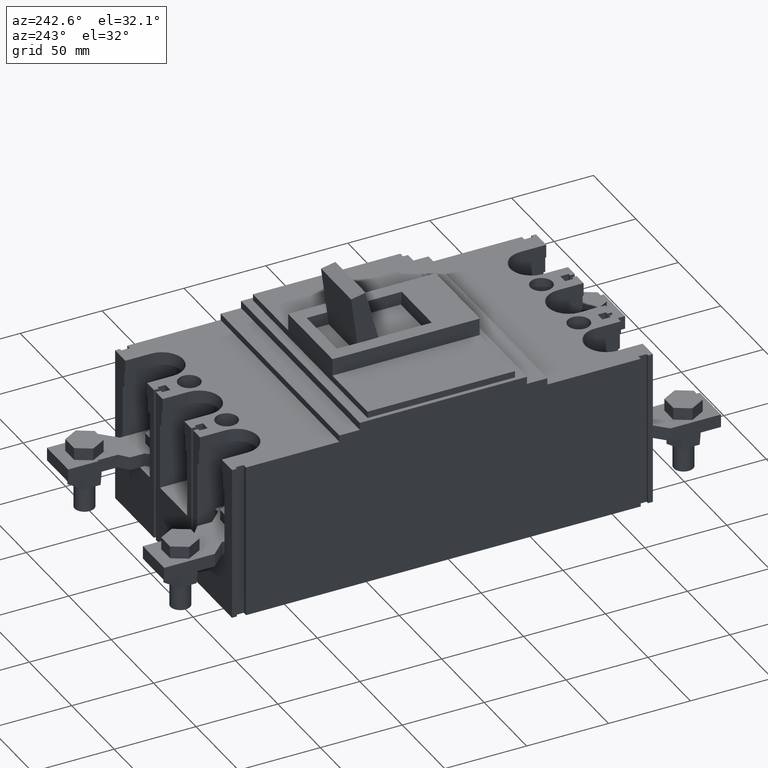
[diagram: clean part render]
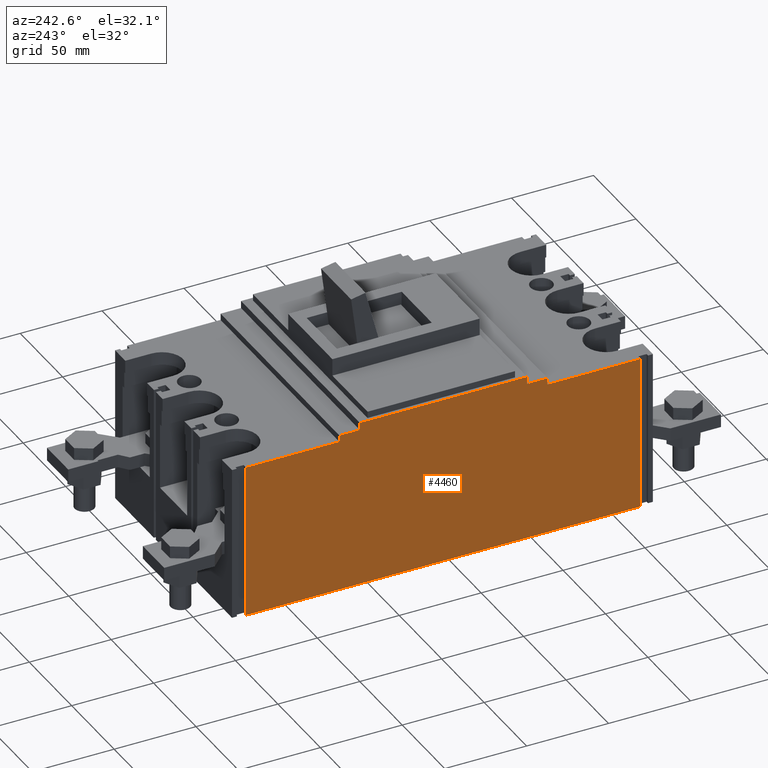
[diagram: same view with one face highlighted and labeled with its STEP entity id]
A machine part, auxiliary view. The second image highlights one B-rep face of the part: STEP entity #4460.
In plain terms, the highlighted planar face has unit normal (1, -0, 0).
Its self-contained STEP definition (entity closure, byte-faithful):
#407 = VERTEX_POINT ( 'NONE', #2709 ) ;
#640 = EDGE_CURVE ( 'NONE', #407, #2222, #14246, .T. ) ;
#1147 = DIRECTION ( 'NONE',  ( -0.0000000000000000000, -1.000000000000000000, -0.0000000000000000000 ) ) ;
#1589 = CARTESIAN_POINT ( 'NONE',  ( -2.755905511811024056, 6.240157480314961091, 0.0000000000000000000 ) ) ;
#1744 = LINE ( 'NONE', #2797, #13025 ) ;
#1826 = ORIENTED_EDGE ( 'NONE', *, *, #16772, .T. ) ;
#2128 = EDGE_CURVE ( 'NONE', #2954, #13733, #11904, .T. ) ;
#2222 = VERTEX_POINT ( 'NONE', #17649 ) ;
#2314 = CARTESIAN_POINT ( 'NONE',  ( -2.755905511811024056, -0.5118110236220473341, 0.0000000000000000000 ) ) ;
#2378 = LINE ( 'NONE', #4693, #18237 ) ;
#2709 = CARTESIAN_POINT ( 'NONE',  ( -2.755905511811024056, 1.732283464566929165, 3.720472440944881942 ) ) ;
#2797 = CARTESIAN_POINT ( 'NONE',  ( -2.755905511811024056, 0.0000000000000000000, 4.055118110236221263 ) ) ;
#2802 = VECTOR ( 'NONE', #16555, 39.37007874015748143 ) ;
#2851 = LINE ( 'NONE', #1589, #11895 ) ;
#2954 = VERTEX_POINT ( 'NONE', #11237 ) ;
#3195 = ORIENTED_EDGE ( 'NONE', *, *, #4880, .F. ) ;
#3298 = DIRECTION ( 'NONE',  ( 0.0000000000000000000, 1.000000000000000000, 0.0000000000000000000 ) ) ;
#3670 = DIRECTION ( 'NONE',  ( 0.0000000000000000000, 0.0000000000000000000, -1.000000000000000000 ) ) ;
#3849 = ORIENTED_EDGE ( 'NONE', *, *, #4855, .F. ) ;
#4022 = CARTESIAN_POINT ( 'NONE',  ( -2.755905511811024056, 0.0000000000000000000, 3.877952755905512028 ) ) ;
#4161 = VECTOR ( 'NONE', #7249, 39.37007874015748143 ) ;
#4460 = ADVANCED_FACE ( 'NONE', ( #9244 ), #13392, .F. ) ;
#4542 = DIRECTION ( 'NONE',  ( 0.0000000000000000000, 0.0000000000000000000, -1.000000000000000000 ) ) ;
#4693 = CARTESIAN_POINT ( 'NONE',  ( -2.755905511811024056, 2.224409448818897683, 0.0000000000000000000 ) ) ;
#4855 = EDGE_CURVE ( 'NONE', #16441, #10743, #1744, .T. ) ;
#4880 = EDGE_CURVE ( 'NONE', #12579, #11005, #17108, .T. ) ;
#4959 = EDGE_CURVE ( 'NONE', #17224, #16441, #2851, .T. ) ;
#5370 = LINE ( 'NONE', #16833, #12147 ) ;
#5467 = CARTESIAN_POINT ( 'NONE',  ( -2.755905511811024056, 6.732283464566929609, 3.877952755905512028 ) ) ;
#5679 = CARTESIAN_POINT ( 'NONE',  ( -2.755905511811024056, 0.0000000000000000000, 3.877952755905512028 ) ) ;
#5997 = ORIENTED_EDGE ( 'NONE', *, *, #640, .F. ) ;
#6189 = LINE ( 'NONE', #15757, #9115 ) ;
#6286 = ORIENTED_EDGE ( 'NONE', *, *, #12306, .F. ) ;
#6421 = CARTESIAN_POINT ( 'NONE',  ( -2.755905511811024056, 0.0000000000000000000, 3.720472440944881942 ) ) ;
#6658 = AXIS2_PLACEMENT_3D ( 'NONE', #17736, #10301, #4542 ) ;
#7248 = VERTEX_POINT ( 'NONE', #18546 ) ;
#7249 = DIRECTION ( 'NONE',  ( -0.0000000000000000000, -1.000000000000000000, -0.0000000000000000000 ) ) ;
#7279 = DIRECTION ( 'NONE',  ( -0.0000000000000000000, -0.0000000000000000000, 1.000000000000000000 ) ) ;
#7419 = ORIENTED_EDGE ( 'NONE', *, *, #2128, .F. ) ;
#7480 = VERTEX_POINT ( 'NONE', #17512 ) ;
#7521 = CARTESIAN_POINT ( 'NONE',  ( -2.755905511811024056, 6.732283464566929609, 3.720472440944881942 ) ) ;
#7669 = EDGE_CURVE ( 'NONE', #11005, #13249, #11358, .T. ) ;
#8600 = CARTESIAN_POINT ( 'NONE',  ( -2.755905511811024056, 0.0000000000000000000, 3.720472440944881942 ) ) ;
#8860 = CARTESIAN_POINT ( 'NONE',  ( -2.755905511811024056, 6.240157480314961091, 3.877952755905512028 ) ) ;
#9115 = VECTOR ( 'NONE', #9972, 39.37007874015748143 ) ;
#9129 = LINE ( 'NONE', #4022, #14326 ) ;
#9244 = FACE_OUTER_BOUND ( 'NONE', #10478, .T. ) ;
#9972 = DIRECTION ( 'NONE',  ( 0.0000000000000000000, 0.0000000000000000000, -1.000000000000000000 ) ) ;
#10301 = DIRECTION ( 'NONE',  ( 1.000000000000000000, -0.0000000000000000000, 0.0000000000000000000 ) ) ;
#10390 = VECTOR ( 'NONE', #13466, 39.37007874015748143 ) ;
#10478 = EDGE_LOOP ( 'NONE', ( #5997, #14508, #16806, #14935, #3849, #18366, #15539, #16465, #3195, #1826, #7419, #6286 ) ) ;
#10515 = VECTOR ( 'NONE', #11494, 39.37007874015748143 ) ;
#10743 = VERTEX_POINT ( 'NONE', #15420 ) ;
#11005 = VERTEX_POINT ( 'NONE', #7521 ) ;
#11237 = CARTESIAN_POINT ( 'NONE',  ( -2.755905511811024056, -0.5118110236220473341, 0.0000000000000000000 ) ) ;
#11358 = LINE ( 'NONE', #16498, #2802 ) ;
#11494 = DIRECTION ( 'NONE',  ( -0.0000000000000000000, -1.000000000000000000, -0.0000000000000000000 ) ) ;
#11895 = VECTOR ( 'NONE', #7279, 39.37007874015748143 ) ;
#11904 = LINE ( 'NONE', #14834, #17332 ) ;
#12147 = VECTOR ( 'NONE', #12330, 39.37007874015748143 ) ;
#12296 = EDGE_CURVE ( 'NONE', #10743, #7248, #2378, .T. ) ;
#12306 = EDGE_CURVE ( 'NONE', #2222, #2954, #17307, .T. ) ;
#12330 = DIRECTION ( 'NONE',  ( 0.0000000000000000000, -0.0000000000000000000, -1.000000000000000000 ) ) ;
#12579 = VERTEX_POINT ( 'NONE', #15336 ) ;
#12707 = EDGE_CURVE ( 'NONE', #7248, #7480, #16158, .T. ) ;
#13025 = VECTOR ( 'NONE', #18679, 39.37007874015748143 ) ;
#13221 = EDGE_CURVE ( 'NONE', #13249, #17224, #9129, .T. ) ;
#13249 = VERTEX_POINT ( 'NONE', #5467 ) ;
#13391 = EDGE_CURVE ( 'NONE', #7480, #407, #6189, .T. ) ;
#13392 = PLANE ( 'NONE',  #6658 ) ;
#13466 = DIRECTION ( 'NONE',  ( -0.0000000000000000000, -1.000000000000000000, -0.0000000000000000000 ) ) ;
#13733 = VERTEX_POINT ( 'NONE', #14262 ) ;
#13871 = VECTOR ( 'NONE', #3670, 39.37007874015748143 ) ;
#14246 = LINE ( 'NONE', #6421, #10390 ) ;
#14262 = CARTESIAN_POINT ( 'NONE',  ( -2.755905511811024056, 8.976377952755905554, 0.0000000000000000000 ) ) ;
#14326 = VECTOR ( 'NONE', #1147, 39.37007874015748143 ) ;
#14508 = ORIENTED_EDGE ( 'NONE', *, *, #13391, .F. ) ;
#14774 = DIRECTION ( 'NONE',  ( 0.0000000000000000000, 0.0000000000000000000, -1.000000000000000000 ) ) ;
#14834 = CARTESIAN_POINT ( 'NONE',  ( -2.755905511811024056, -0.8267716535433071723, 0.0000000000000000000 ) ) ;
#14935 = ORIENTED_EDGE ( 'NONE', *, *, #12296, .F. ) ;
#15336 = CARTESIAN_POINT ( 'NONE',  ( -2.755905511811024056, 8.976377952755905554, 3.720472440944881942 ) ) ;
#15420 = CARTESIAN_POINT ( 'NONE',  ( -2.755905511811024056, 2.224409448818897683, 4.055118110236221263 ) ) ;
#15539 = ORIENTED_EDGE ( 'NONE', *, *, #13221, .F. ) ;
#15757 = CARTESIAN_POINT ( 'NONE',  ( -2.755905511811024056, 1.732283464566929165, 0.0000000000000000000 ) ) ;
#16158 = LINE ( 'NONE', #5679, #4161 ) ;
#16441 = VERTEX_POINT ( 'NONE', #17296 ) ;
#16465 = ORIENTED_EDGE ( 'NONE', *, *, #7669, .F. ) ;
#16498 = CARTESIAN_POINT ( 'NONE',  ( -2.755905511811024056, 6.732283464566929609, 0.0000000000000000000 ) ) ;
#16555 = DIRECTION ( 'NONE',  ( -0.0000000000000000000, -0.0000000000000000000, 1.000000000000000000 ) ) ;
#16772 = EDGE_CURVE ( 'NONE', #12579, #13733, #5370, .T. ) ;
#16806 = ORIENTED_EDGE ( 'NONE', *, *, #12707, .F. ) ;
#16833 = CARTESIAN_POINT ( 'NONE',  ( -2.755905511811024056, 8.976377952755905554, 3.720472440944881942 ) ) ;
#17108 = LINE ( 'NONE', #8600, #10515 ) ;
#17224 = VERTEX_POINT ( 'NONE', #8860 ) ;
#17296 = CARTESIAN_POINT ( 'NONE',  ( -2.755905511811024056, 6.240157480314961091, 4.055118110236221263 ) ) ;
#17307 = LINE ( 'NONE', #2314, #13871 ) ;
#17332 = VECTOR ( 'NONE', #3298, 39.37007874015748143 ) ;
#17512 = CARTESIAN_POINT ( 'NONE',  ( -2.755905511811024056, 1.732283464566929165, 3.877952755905512028 ) ) ;
#17649 = CARTESIAN_POINT ( 'NONE',  ( -2.755905511811024056, -0.5118110236220475562, 3.720472440944881942 ) ) ;
#17736 = CARTESIAN_POINT ( 'NONE',  ( -2.755905511811024056, 0.0000000000000000000, 0.0000000000000000000 ) ) ;
#18237 = VECTOR ( 'NONE', #14774, 39.37007874015748143 ) ;
#18366 = ORIENTED_EDGE ( 'NONE', *, *, #4959, .F. ) ;
#18546 = CARTESIAN_POINT ( 'NONE',  ( -2.755905511811024056, 2.224409448818897683, 3.877952755905512028 ) ) ;
#18679 = DIRECTION ( 'NONE',  ( -0.0000000000000000000, -1.000000000000000000, -0.0000000000000000000 ) ) ;